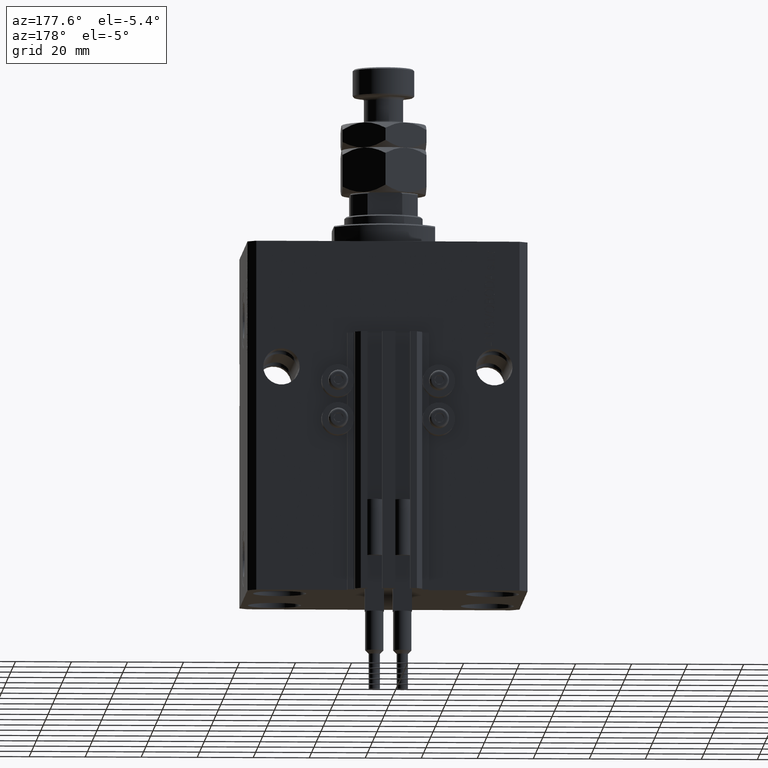
[diagram: clean part render]
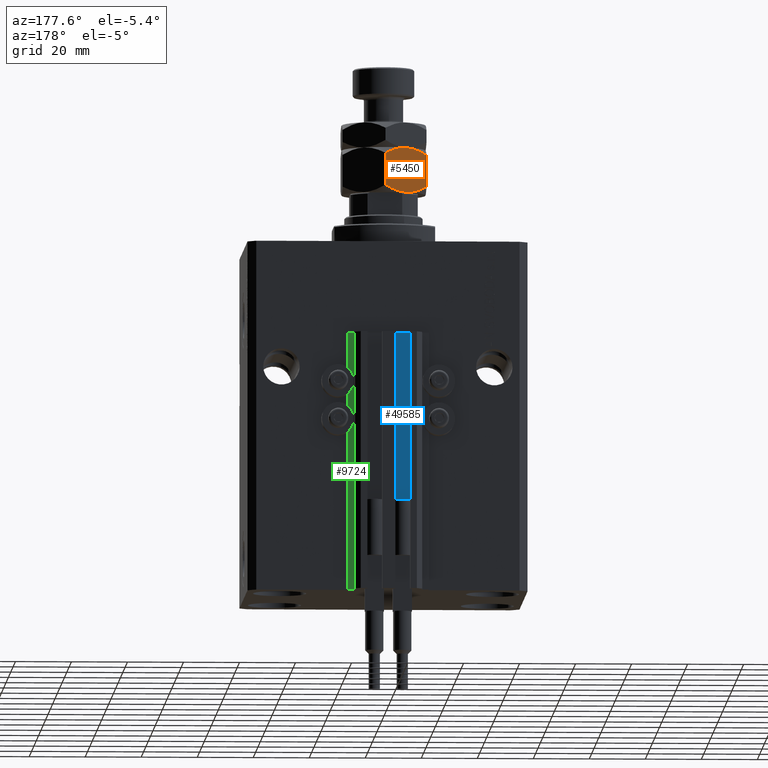
[diagram: same view with three faces highlighted in distinct colors, each labeled with its STEP entity id]
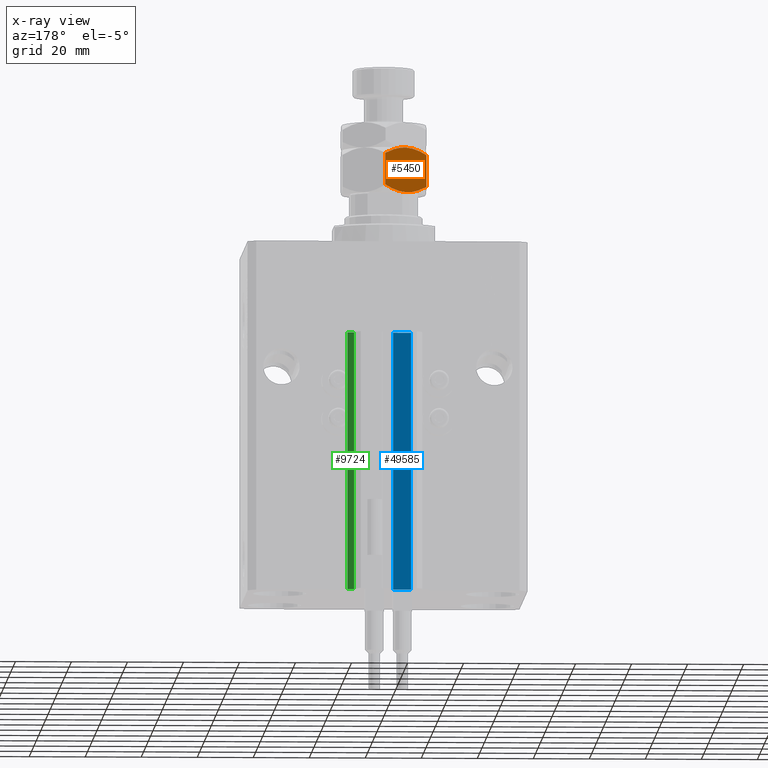
[diagram: x-ray of the same camera — body ghosted, the three highlighted faces saturated]
A machine part, auxiliary view with three faces highlighted in distinct colors.
The next image is the same camera in x-ray (body ghosted, the three faces saturated) — at least one of them is partly hidden behind the body in this view.
Their STEP definitions:

[orange] entity #5450 — the highlighted planar face has unit normal (0.5, -0.866, 0).
#490 = VERTEX_POINT ( 'NONE', #19181 ) ;
#509 = CARTESIAN_POINT ( 'NONE',  ( -7.499999999999992895, 12.99038105676658361, 0.000000000000000000 ) ) ;
#1305 = CARTESIAN_POINT ( 'NONE',  ( 0.000000000000000000, 17.32050807568877104, 16.00000000000000000 ) ) ;
#3316 = CARTESIAN_POINT ( 'NONE',  ( -2.383929548160348855, 15.94414570932928576, 1.060479031370877401 ) ) ;
#3532 = CARTESIAN_POINT ( 'NONE',  ( -8.804550678576905653, 12.23719837131869781, 16.00000000000000000 ) ) ;
#4309 = AXIS2_PLACEMENT_3D ( 'NONE', #1305, #9255, #5152 ) ;
#4336 = CARTESIAN_POINT ( 'NONE',  ( -8.823580389329299223, 12.22621156269320863, 0.05953537397470442388 ) ) ;
#5010 = CARTESIAN_POINT ( 'NONE',  ( 3.803331551779305683E-16, 17.32050807568877104, 13.67949192431124317 ) ) ;
#5152 = DIRECTION ( 'NONE',  ( 0.8660254037844389297, 0.4999999999999995559, 0.000000000000000000 ) ) ;
#5450 = ADVANCED_FACE ( 'NONE', ( #20788 ), #24631, .F. ) ;
#8130 = ORIENTED_EDGE ( 'NONE', *, *, #41884, .F. ) ;
#8912 = EDGE_CURVE ( 'NONE', #23861, #50010, #14549, .T. ) ;
#9255 = DIRECTION ( 'NONE',  ( 0.4999999999999995559, -0.8660254037844389297, 0.000000000000000000 ) ) ;
#9532 = VERTEX_POINT ( 'NONE', #49957 ) ;
#9860 = LINE ( 'NONE', #37247, #48823 ) ;
#10405 = CARTESIAN_POINT ( 'NONE',  ( -15.00000000000000000, 8.660254037844392627, 13.67949192431123429 ) ) ;
#10727 = CARTESIAN_POINT ( 'NONE',  ( -10.08691881950258740, 11.49682277995505864, 15.76967007806078236 ) ) ;
#11033 = CARTESIAN_POINT ( 'NONE',  ( -1.174746544192158293, 16.64226784216984356, 1.642267842169780501 ) ) ;
#14549 = B_SPLINE_CURVE_WITH_KNOTS ( 'NONE', 3,
 ( #18838, #34958, #34445, #46257, #27784, #43911, #44166, #17015 ),
 .UNSPECIFIED., .F., .F.,
 ( 4, 2, 2, 4 ),
 ( 2.544309033646407248E-07, 0.004488823491893900036, 0.006733108022389169313, 0.008977392552884438590 ),
 .UNSPECIFIED. ) ;
#14712 = CARTESIAN_POINT ( 'NONE',  ( -7.499999999999991118, 12.99038105676658184, 16.00000000000000000 ) ) ;
#15517 = B_SPLINE_CURVE_WITH_KNOTS ( 'NONE', 3,
 ( #35337, #42791, #23836, #39426, #20237, #4336, #35590, #509 ),
 .UNSPECIFIED., .F., .F.,
 ( 4, 2, 2, 4 ),
 ( 2.544309033652409006E-07, 0.004488823491893913914, 0.006733108022389184058, 0.008977392552884454202 ),
 .UNSPECIFIED. ) ;
#15777 = ORIENTED_EDGE ( 'NONE', *, *, #39552, .F. ) ;
#17015 = CARTESIAN_POINT ( 'NONE',  ( -7.499999999999991118, 12.99038105676658184, 16.00000000000000000 ) ) ;
#18838 = CARTESIAN_POINT ( 'NONE',  ( 3.803331551779305683E-16, 17.32050807568877104, 13.67949192431124317 ) ) ;
#19181 = CARTESIAN_POINT ( 'NONE',  ( -7.499999999999992895, 12.99038105676658361, 0.000000000000000000 ) ) ;
#20008 = EDGE_CURVE ( 'NONE', #26925, #45758, #9860, .T. ) ;
#20237 = CARTESIAN_POINT ( 'NONE',  ( -10.11832554202262280, 11.47869010025375403, 0.2838026619462963862 ) ) ;
#20788 = FACE_OUTER_BOUND ( 'NONE', #31735, .T. ) ;
#21558 = B_SPLINE_CURVE_WITH_KNOTS ( 'NONE', 3,
 ( #34787, #3532, #10727, #37848, #22510, #50675 ),
 .UNSPECIFIED., .F., .F.,
 ( 4, 2, 4 ),
 ( 0.008977392552884438590, 0.01343452311421656012, 0.01789165367554868338 ),
 .UNSPECIFIED. ) ;
#22510 = CARTESIAN_POINT ( 'NONE',  ( -13.82525345580783771, 9.338494271363320109, 14.35773215783021683 ) ) ;
#23836 = CARTESIAN_POINT ( 'NONE',  ( -12.62116548881249400, 10.03367478323607109, 1.064486067744009556 ) ) ;
#23861 = VERTEX_POINT ( 'NONE', #5010 ) ;
#24631 = PLANE ( 'NONE',  #4309 ) ;
#26925 = VERTEX_POINT ( 'NONE', #10405 ) ;
#27660 = CARTESIAN_POINT ( 'NONE',  ( 7.621669386706803087E-17, 17.32050807568877104, 2.320508075688761718 ) ) ;
#27784 = CARTESIAN_POINT ( 'NONE',  ( -4.881674457977373649, 14.50207201327941675, 15.71619733805371055 ) ) ;
#28656 = VECTOR ( 'NONE', #47320, 1000.000000000000000 ) ;
#29071 = DIRECTION ( 'NONE',  ( -0.000000000000000000, -0.000000000000000000, -1.000000000000000000 ) ) ;
#30735 = EDGE_CURVE ( 'NONE', #45758, #490, #15517, .T. ) ;
#31682 = CARTESIAN_POINT ( 'NONE',  ( 0.000000000000000000, 17.32050807568877104, 16.00000000000000000 ) ) ;
#31735 = EDGE_LOOP ( 'NONE', ( #44796, #40090, #8130, #36746, #40037, #15777 ) ) ;
#34445 = CARTESIAN_POINT ( 'NONE',  ( -2.378834511187503331, 15.94708733029709435, 14.93551393225599710 ) ) ;
#34787 = CARTESIAN_POINT ( 'NONE',  ( -7.499999999999991118, 12.99038105676658184, 16.00000000000000000 ) ) ;
#34958 = CARTESIAN_POINT ( 'NONE',  ( -1.176108425306640504, 16.64148155974180199, 14.35851844025821578 ) ) ;
#35337 = CARTESIAN_POINT ( 'NONE',  ( -15.00000000000000000, 8.660254037844394404, 2.320508075688769711 ) ) ;
#35590 = CARTESIAN_POINT ( 'NONE',  ( -8.156876182308247181, 12.61113341608666083, 3.106916850528774038E-15 ) ) ;
#36746 = ORIENTED_EDGE ( 'NONE', *, *, #8912, .F. ) ;
#37247 = CARTESIAN_POINT ( 'NONE',  ( -15.00000000000000000, 8.660254037844392627, 16.00000000000000000 ) ) ;
#37848 = CARTESIAN_POINT ( 'NONE',  ( -12.61607045183964715, 10.03661640420387435, 14.93952096862911816 ) ) ;
#38811 = EDGE_CURVE ( 'NONE', #23861, #9532, #43713, .T. ) ;
#38922 = CARTESIAN_POINT ( 'NONE',  ( -6.195449321423083688, 13.74356374221447297, 3.003578830963748213E-15 ) ) ;
#39426 = CARTESIAN_POINT ( 'NONE',  ( -10.75222765045650597, 11.11270654730957119, 0.4475714085130295117 ) ) ;
#39552 = EDGE_CURVE ( 'NONE', #490, #9532, #46160, .T. ) ;
#40037 = ORIENTED_EDGE ( 'NONE', *, *, #38811, .T. ) ;
#40090 = ORIENTED_EDGE ( 'NONE', *, *, #20008, .F. ) ;
#41884 = EDGE_CURVE ( 'NONE', #50010, #26925, #21558, .T. ) ;
#42520 = CARTESIAN_POINT ( 'NONE',  ( -7.499999999999992895, 12.99038105676658361, 0.000000000000000000 ) ) ;
#42791 = CARTESIAN_POINT ( 'NONE',  ( -13.82389157469336283, 9.339280553791375894, 1.641481559741795548 ) ) ;
#43713 = LINE ( 'NONE', #31682, #28656 ) ;
#43911 = CARTESIAN_POINT ( 'NONE',  ( -6.176419610670691895, 13.75455055083996747, 15.94046462602529957 ) ) ;
#44166 = CARTESIAN_POINT ( 'NONE',  ( -6.843123817691743938, 13.36962869744650995, 16.00000000000000355 ) ) ;
#44496 = CARTESIAN_POINT ( 'NONE',  ( -15.00000000000000000, 8.660254037844394404, 2.320508075688769711 ) ) ;
#44796 = ORIENTED_EDGE ( 'NONE', *, *, #30735, .F. ) ;
#45758 = VERTEX_POINT ( 'NONE', #44496 ) ;
#46127 = CARTESIAN_POINT ( 'NONE',  ( -4.913081180497406386, 14.48393933357811214, 0.2303299219392169472 ) ) ;
#46160 = B_SPLINE_CURVE_WITH_KNOTS ( 'NONE', 3,
 ( #42520, #38922, #46127, #3316, #11033, #27660 ),
 .UNSPECIFIED., .F., .F.,
 ( 4, 2, 4 ),
 ( 0.008977392552884454202, 0.01343452311421656706, 0.01789165367554867991 ),
 .UNSPECIFIED. ) ;
#46257 = CARTESIAN_POINT ( 'NONE',  ( -4.247772349543481596, 14.86805556622359070, 15.55242859148697043 ) ) ;
#47320 = DIRECTION ( 'NONE',  ( -0.000000000000000000, -0.000000000000000000, -1.000000000000000000 ) ) ;
#48823 = VECTOR ( 'NONE', #29071, 1000.000000000000000 ) ;
#49957 = CARTESIAN_POINT ( 'NONE',  ( 7.621669386706803087E-17, 17.32050807568877104, 2.320508075688761718 ) ) ;
#50010 = VERTEX_POINT ( 'NONE', #14712 ) ;
#50675 = CARTESIAN_POINT ( 'NONE',  ( -15.00000000000000000, 8.660254037844392627, 13.67949192431123429 ) ) ;

[blue] entity #49585 — the highlighted planar face has unit normal (0, 1, 0).
#3011 = VECTOR ( 'NONE', #21773, 1000.000000000000000 ) ;
#3107 = CARTESIAN_POINT ( 'NONE',  ( -1.800000000000000933, 39.50000000000000000, -125.0000000000000000 ) ) ;
#3270 = VERTEX_POINT ( 'NONE', #5689 ) ;
#5388 = LINE ( 'NONE', #21513, #3011 ) ;
#5647 = ORIENTED_EDGE ( 'NONE', *, *, #20618, .F. ) ;
#5689 = CARTESIAN_POINT ( 'NONE',  ( -1.800000000000000933, 39.50000000000000000, -33.00000000000000000 ) ) ;
#6656 = LINE ( 'NONE', #18440, #48481 ) ;
#9975 = VECTOR ( 'NONE', #23756, 1000.000000000000000 ) ;
#11999 = VERTEX_POINT ( 'NONE', #33712 ) ;
#16710 = AXIS2_PLACEMENT_3D ( 'NONE', #36791, #17348, #29375 ) ;
#17348 = DIRECTION ( 'NONE',  ( 0.000000000000000000, 1.000000000000000000, -0.000000000000000000 ) ) ;
#18100 = FACE_OUTER_BOUND ( 'NONE', #28271, .T. ) ;
#18361 = PLANE ( 'NONE',  #16710 ) ;
#18440 = CARTESIAN_POINT ( 'NONE',  ( -1.800000000000000933, 39.50000000000000000, -33.00000000000000000 ) ) ;
#19526 = LINE ( 'NONE', #3107, #43415 ) ;
#20618 = EDGE_CURVE ( 'NONE', #48138, #3270, #5388, .T. ) ;
#21513 = CARTESIAN_POINT ( 'NONE',  ( -1.800000000000000933, 39.50000000000000000, -125.0000000000000000 ) ) ;
#21773 = DIRECTION ( 'NONE',  ( 0.000000000000000000, 0.000000000000000000, 1.000000000000000000 ) ) ;
#23756 = DIRECTION ( 'NONE',  ( 0.000000000000000000, 0.000000000000000000, 1.000000000000000000 ) ) ;
#24223 = ORIENTED_EDGE ( 'NONE', *, *, #44877, .T. ) ;
#28271 = EDGE_LOOP ( 'NONE', ( #38740, #5647, #50476, #24223 ) ) ;
#29375 = DIRECTION ( 'NONE',  ( 0.000000000000000000, 0.000000000000000000, 1.000000000000000000 ) ) ;
#31728 = DIRECTION ( 'NONE',  ( -1.000000000000000000, 0.000000000000000000, 0.000000000000000000 ) ) ;
#32001 = EDGE_CURVE ( 'NONE', #48138, #11999, #19526, .T. ) ;
#33712 = CARTESIAN_POINT ( 'NONE',  ( -8.199999999999997513, 39.50000000000000000, -125.0000000000000000 ) ) ;
#35122 = DIRECTION ( 'NONE',  ( -1.000000000000000000, 0.000000000000000000, 0.000000000000000000 ) ) ;
#36326 = EDGE_CURVE ( 'NONE', #3270, #37711, #6656, .T. ) ;
#36791 = CARTESIAN_POINT ( 'NONE',  ( -1.800000000000000933, 39.50000000000000000, -125.0000000000000000 ) ) ;
#36806 = CARTESIAN_POINT ( 'NONE',  ( -8.199999999999997513, 39.50000000000000000, -33.00000000000000000 ) ) ;
#37711 = VERTEX_POINT ( 'NONE', #36806 ) ;
#38740 = ORIENTED_EDGE ( 'NONE', *, *, #36326, .F. ) ;
#40690 = CARTESIAN_POINT ( 'NONE',  ( -1.800000000000000933, 39.50000000000000000, -125.0000000000000000 ) ) ;
#43209 = LINE ( 'NONE', #43710, #9975 ) ;
#43415 = VECTOR ( 'NONE', #35122, 1000.000000000000000 ) ;
#43710 = CARTESIAN_POINT ( 'NONE',  ( -8.199999999999997513, 39.50000000000000000, -125.0000000000000000 ) ) ;
#44877 = EDGE_CURVE ( 'NONE', #11999, #37711, #43209, .T. ) ;
#48138 = VERTEX_POINT ( 'NONE', #40690 ) ;
#48481 = VECTOR ( 'NONE', #31728, 1000.000000000000000 ) ;
#49585 = ADVANCED_FACE ( 'NONE', ( #18100 ), #18361, .T. ) ;
#50476 = ORIENTED_EDGE ( 'NONE', *, *, #32001, .T. ) ;

[green] entity #9724 — the highlighted planar face has unit normal (0, 1, 0).
#216 = DIRECTION ( 'NONE',  ( -1.000000000000000000, 0.000000000000000000, 0.000000000000000000 ) ) ;
#672 = DIRECTION ( 'NONE',  ( 0.000000000000000000, 0.000000000000000000, 1.000000000000000000 ) ) ;
#1126 = DIRECTION ( 'NONE',  ( 0.000000000000000000, 0.000000000000000000, 1.000000000000000000 ) ) ;
#3071 = CARTESIAN_POINT ( 'NONE',  ( 12.20000000000000107, 40.00000000000002132, -125.0000000000000000 ) ) ;
#6645 = ORIENTED_EDGE ( 'NONE', *, *, #32340, .F. ) ;
#6929 = CARTESIAN_POINT ( 'NONE',  ( 12.20000000000000107, 40.00000000000002132, -33.00000000000000000 ) ) ;
#7322 = FACE_OUTER_BOUND ( 'NONE', #29989, .T. ) ;
#7422 = VECTOR ( 'NONE', #1126, 1000.000000000000000 ) ;
#9502 = LINE ( 'NONE', #25888, #20691 ) ;
#9724 = ADVANCED_FACE ( 'NONE', ( #7322 ), #34711, .T. ) ;
#10499 = ORIENTED_EDGE ( 'NONE', *, *, #39111, .T. ) ;
#11425 = DIRECTION ( 'NONE',  ( 0.000000000000000000, 1.000000000000000000, -0.000000000000000000 ) ) ;
#12219 = CARTESIAN_POINT ( 'NONE',  ( 14.49999999999999645, 40.00000000000002132, -125.0000000000000000 ) ) ;
#13598 = DIRECTION ( 'NONE',  ( -1.000000000000000000, 0.000000000000000000, 0.000000000000000000 ) ) ;
#16074 = CARTESIAN_POINT ( 'NONE',  ( 14.49999999999999645, 40.00000000000002132, -125.0000000000000000 ) ) ;
#17519 = CARTESIAN_POINT ( 'NONE',  ( 12.20000000000000107, 40.00000000000002132, -125.0000000000000000 ) ) ;
#17575 = AXIS2_PLACEMENT_3D ( 'NONE', #50362, #11425, #46517 ) ;
#20691 = VECTOR ( 'NONE', #13598, 1000.000000000000000 ) ;
#21918 = EDGE_CURVE ( 'NONE', #29624, #29005, #36313, .T. ) ;
#23555 = CARTESIAN_POINT ( 'NONE',  ( 14.49999999999999645, 40.00000000000002132, -33.00000000000000000 ) ) ;
#24455 = LINE ( 'NONE', #17519, #7422 ) ;
#25888 = CARTESIAN_POINT ( 'NONE',  ( 14.49999999999999645, 40.00000000000002132, -125.0000000000000000 ) ) ;
#29005 = VERTEX_POINT ( 'NONE', #6929 ) ;
#29624 = VERTEX_POINT ( 'NONE', #42853 ) ;
#29989 = EDGE_LOOP ( 'NONE', ( #44687, #6645, #48482, #10499 ) ) ;
#32340 = EDGE_CURVE ( 'NONE', #44855, #29624, #34760, .T. ) ;
#34711 = PLANE ( 'NONE',  #17575 ) ;
#34760 = LINE ( 'NONE', #12219, #36043 ) ;
#36043 = VECTOR ( 'NONE', #672, 1000.000000000000000 ) ;
#36302 = EDGE_CURVE ( 'NONE', #44855, #41605, #9502, .T. ) ;
#36313 = LINE ( 'NONE', #23555, #42340 ) ;
#39111 = EDGE_CURVE ( 'NONE', #41605, #29005, #24455, .T. ) ;
#41605 = VERTEX_POINT ( 'NONE', #3071 ) ;
#42340 = VECTOR ( 'NONE', #216, 1000.000000000000000 ) ;
#42853 = CARTESIAN_POINT ( 'NONE',  ( 14.49999999999999645, 40.00000000000002132, -33.00000000000000000 ) ) ;
#44687 = ORIENTED_EDGE ( 'NONE', *, *, #21918, .F. ) ;
#44855 = VERTEX_POINT ( 'NONE', #16074 ) ;
#46517 = DIRECTION ( 'NONE',  ( 0.000000000000000000, 0.000000000000000000, 1.000000000000000000 ) ) ;
#48482 = ORIENTED_EDGE ( 'NONE', *, *, #36302, .T. ) ;
#50362 = CARTESIAN_POINT ( 'NONE',  ( 14.49999999999999645, 40.00000000000002132, -125.0000000000000000 ) ) ;